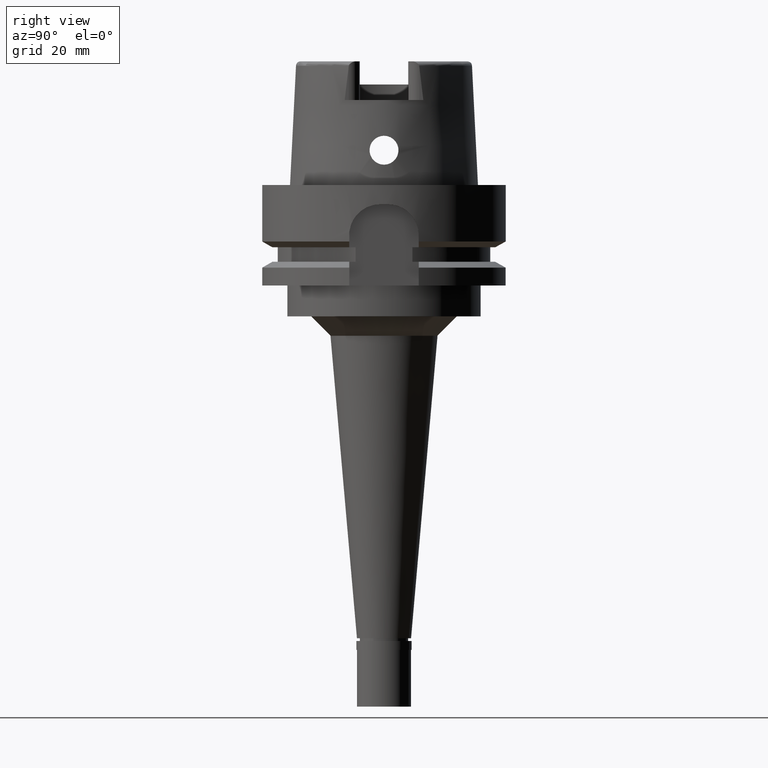
[diagram: clean part render]
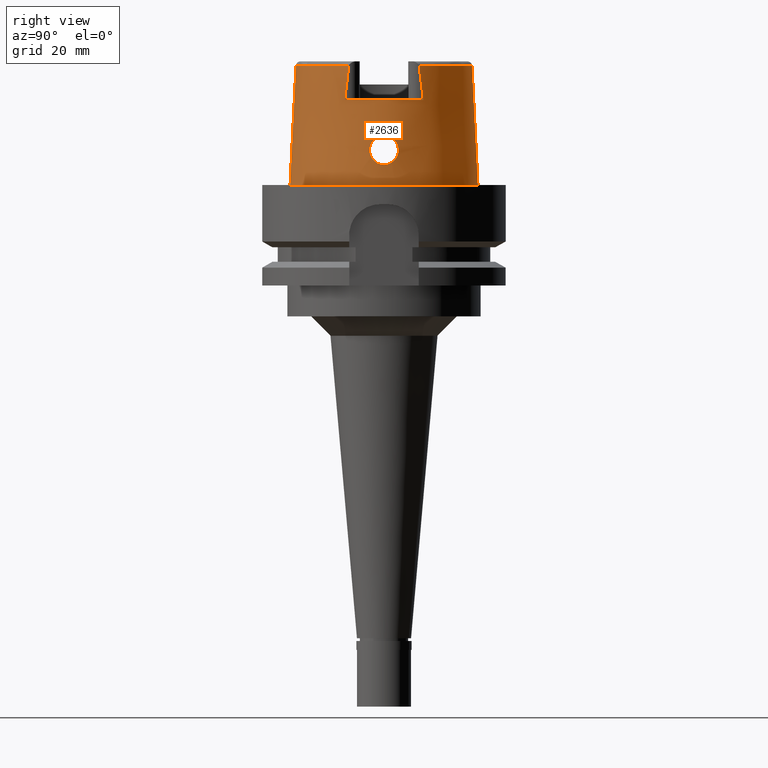
[diagram: same view with one face highlighted and labeled with its STEP entity id]
A machine part, right view. The second image highlights one B-rep face of the part: STEP entity #2636.
In plain terms, the highlighted conical surface has half-angle 2.862 deg.
Its self-contained STEP definition (entity closure, byte-faithful):
#4 = CARTESIAN_POINT ( 'NONE',  ( 23.68855723751004305, 3.450347699171872229, 7.530740006982551193 ) ) ;
#15 = CARTESIAN_POINT ( 'NONE',  ( 23.66772687887053550, -0.8260377808822363388, 12.65995669645669963 ) ) ;
#23 = CARTESIAN_POINT ( 'NONE',  ( 0.0000000000000000000, 22.77198729362000051, 30.85992712280000205 ) ) ;
#33 = CARTESIAN_POINT ( 'NONE',  ( 23.58900350600363183, 2.568408779417151511, 11.73510614039437172 ) ) ;
#62 = CARTESIAN_POINT ( 'NONE',  ( 23.61434009438023551, 2.137341337361701843, 12.08185171317717099 ) ) ;
#73 = CARTESIAN_POINT ( 'NONE',  ( 23.53993064155929105, -3.456305505734272643, 10.45481873918761195 ) ) ;
#88 = CARTESIAN_POINT ( 'NONE',  ( 23.58328856883540325, 2.660397646959397289, 11.64288536794346740 ) ) ;
#99 = CARTESIAN_POINT ( 'NONE',  ( 23.68088914115921284, -3.478839937161328777, 7.599913795360554225 ) ) ;
#131 = CARTESIAN_POINT ( 'NONE',  ( 23.84336247572032264, -2.695652087563208177, 6.393048436251502764 ) ) ;
#161 = CARTESIAN_POINT ( 'NONE',  ( 23.61798703484666007, -2.072642269840850648, 12.12517739533003258 ) ) ;
#164 = CARTESIAN_POINT ( 'NONE',  ( 0.0000000000000000000, 0.0000000000000000000, 30.85992712280000205 ) ) ;
#181 = CARTESIAN_POINT ( 'NONE',  ( 20.86997923046000025, 9.137001476156999757, 30.65040344234000003 ) ) ;
#188 = CARTESIAN_POINT ( 'NONE',  ( 23.88313469394290323, -2.454466314582109732, 6.151039821336518720 ) ) ;
#243 = EDGE_CURVE ( 'NONE', #4174, #3178, #4065, .T. ) ;
#246 = CARTESIAN_POINT ( 'NONE',  ( 23.99475801663713881, -1.442555970846193913, 5.538558543152837466 ) ) ;
#295 = CARTESIAN_POINT ( 'NONE',  ( 23.85298157406705499, 2.637214454195925040, 6.333980631488545399 ) ) ;
#324 = CARTESIAN_POINT ( 'NONE',  ( 23.98170405093249258, 1.606144847494943573, 5.605670975346608742 ) ) ;
#349 = CARTESIAN_POINT ( 'NONE',  ( 23.91319100211238080, 2.220985478939423885, 5.975451479650282671 ) ) ;
#362 = CARTESIAN_POINT ( 'NONE',  ( 20.86974110889999778, -9.111383545104999371, 30.85992740058000194 ) ) ;
#373 = CARTESIAN_POINT ( 'NONE',  ( 23.78102592462941445, 3.042781360712461414, 6.807334946793851316 ) ) ;
#384 = CARTESIAN_POINT ( 'NONE',  ( 23.61879622039568360, -2.057735969429762335, 12.13501234624806635 ) ) ;
#400 = ORIENTED_EDGE ( 'NONE', *, *, #2349, .T. ) ;
#402 = CARTESIAN_POINT ( 'NONE',  ( 23.65754888654957000, 3.566085653651247966, 7.809420252310836474 ) ) ;
#413 = VERTEX_POINT ( 'NONE', #3815 ) ;
#429 = CARTESIAN_POINT ( 'NONE',  ( 23.67751368057999883, 0.0000000000000000000, 12.75000000000000000 ) ) ;
#438 = CARTESIAN_POINT ( 'NONE',  ( 23.63992068397712032, -1.634347415397039871, 12.37735881775965652 ) ) ;
#453 = CARTESIAN_POINT ( 'NONE',  ( 23.58088518528171917, 2.699134634756411799, 11.60340814209685512 ) ) ;
#463 = CARTESIAN_POINT ( 'NONE',  ( 20.87001804948999961, 10.16747560217999968, 22.00000000000000000 ) ) ;
#473 = CARTESIAN_POINT ( 'NONE',  ( 24.05252611746999847, 0.0000000000000000000, 5.250000000000000000 ) ) ;
#483 = CARTESIAN_POINT ( 'NONE',  ( 23.69823497449173644, 3.412896848069677525, 7.445770702798573559 ) ) ;
#493 = CIRCLE ( 'NONE', #5019, 22.77198729362000051 ) ;
#494 = ORIENTED_EDGE ( 'NONE', *, *, #2341, .F. ) ;
#495 = CARTESIAN_POINT ( 'NONE',  ( 23.58844011897630466, -2.579645952114356877, 11.72205482460137382 ) ) ;
#509 = CARTESIAN_POINT ( 'NONE',  ( 23.59448689738724880, 2.477571482731500740, 11.81765306688613926 ) ) ;
#519 = CARTESIAN_POINT ( 'NONE',  ( 23.54701823615287637, -3.272998740002804219, 10.83389842775837586 ) ) ;
#541 = CARTESIAN_POINT ( 'NONE',  ( 23.55879106088249486, -3.744993943070600295, 9.209164391727391319 ) ) ;
#543 = CARTESIAN_POINT ( 'NONE',  ( 23.67751368057999883, 0.0000000000000000000, 12.75000000000000000 ) ) ;
#544 = VERTEX_POINT ( 'NONE', #1052 ) ;
#546 = EDGE_CURVE ( 'NONE', #5207, #3756, #2248, .T. ) ;
#568 = CARTESIAN_POINT ( 'NONE',  ( 23.59513476661113529, -3.730063598076286180, 8.542745580924540505 ) ) ;
#572 = CARTESIAN_POINT ( 'NONE',  ( 20.87001804948999961, 10.16747560217999968, 22.00000000000000000 ) ) ;
#586 = DIRECTION ( 'NONE',  ( 0.0000000000000000000, -1.000000000000000000, 0.0000000000000000000 ) ) ;
#597 = CARTESIAN_POINT ( 'NONE',  ( 23.83799695282603537, -2.727666253649847494, 6.426288021822288421 ) ) ;
#672 = CARTESIAN_POINT ( 'NONE',  ( 20.86974092012000170, 9.111384045666000020, 30.85992712280000205 ) ) ;
#702 = CARTESIAN_POINT ( 'NONE',  ( 23.88412909391565364, 2.432479418485351985, 6.145091003386774275 ) ) ;
#732 = CARTESIAN_POINT ( 'NONE',  ( 24.03376500060119980, 0.8302480605331002961, 5.341037130340071215 ) ) ;
#748 = AXIS2_PLACEMENT_3D ( 'NONE', #4690, #974, #2627 ) ;
#777 = DIRECTION ( 'NONE',  ( 0.0000000000000000000, 0.0000000000000000000, 1.000000000000000000 ) ) ;
#788 = CARTESIAN_POINT ( 'NONE',  ( 23.96242306813915235, 1.805086656811340617, 5.703892601686042951 ) ) ;
#795 = CARTESIAN_POINT ( 'NONE',  ( 23.65026068734314180, -1.384314138295526631, 12.48520441693819372 ) ) ;
#814 = CARTESIAN_POINT ( 'NONE',  ( 23.54630096614531354, 3.287577046925347357, 10.82043521641359796 ) ) ;
#854 = CARTESIAN_POINT ( 'NONE',  ( 23.67751368057999883, 0.0000000000000000000, 12.75000000000000000 ) ) ;
#869 = CARTESIAN_POINT ( 'NONE',  ( 23.53944839190516447, 3.475559442195103266, 10.40820764358275952 ) ) ;
#898 = CARTESIAN_POINT ( 'NONE',  ( 23.60482837085066876, 3.707229936253751745, 8.421914948171217219 ) ) ;
#926 = CARTESIAN_POINT ( 'NONE',  ( 23.57177321179175067, 2.847084432126883335, 11.44160620811570617 ) ) ;
#935 = CARTESIAN_POINT ( 'NONE',  ( 23.53850053331191461, -3.633706509211452218, 9.958319738545080568 ) ) ;
#962 = CARTESIAN_POINT ( 'NONE',  ( 23.59335121987951567, -2.500896529123173284, 11.79546787947302278 ) ) ;
#964 = CARTESIAN_POINT ( 'NONE',  ( 20.87000693992522926, 9.487123607258801883, 27.83827043657305111 ) ) ;
#974 = DIRECTION ( 'NONE',  ( 0.0000000000000000000, 0.0000000000000000000, -1.000000000000000000 ) ) ;
#984 = ORIENTED_EDGE ( 'NONE', *, *, #1774, .F. ) ;
#985 = CARTESIAN_POINT ( 'NONE',  ( 23.63472539880449830, -3.632547172957614201, 8.060104416561403085 ) ) ;
#1011 = CARTESIAN_POINT ( 'NONE',  ( 23.75809834855019176, -3.153628435814857411, 6.970797772904921530 ) ) ;
#1017 = VERTEX_POINT ( 'NONE', #4490 ) ;
#1039 = CARTESIAN_POINT ( 'NONE',  ( 23.76110487861491194, -3.139278339462332923, 6.948778678403657594 ) ) ;
#1049 = EDGE_CURVE ( 'NONE', #4278, #3178, #4320, .T. ) ;
#1052 = CARTESIAN_POINT ( 'NONE',  ( 0.0000000000000000000, 22.77198729362000051, 30.85992712280000205 ) ) ;
#1056 = EDGE_CURVE ( 'NONE', #3756, #413, #1944, .T. ) ;
#1124 = CARTESIAN_POINT ( 'NONE',  ( 23.99856500471819842, 1.394863178636560397, 5.519063425021861313 ) ) ;
#1175 = CARTESIAN_POINT ( 'NONE',  ( 23.99223646367448737, -1.473410311190632704, 5.551539834736958667 ) ) ;
#1177 = CARTESIAN_POINT ( 'NONE',  ( 23.85626858625260738, 2.616581020068711627, 6.313722416924282044 ) ) ;
#1196 = CARTESIAN_POINT ( 'NONE',  ( 0.0000000000000000000, 0.0000000000000000000, 1.136868377215999875E-13 ) ) ;
#1206 = CARTESIAN_POINT ( 'NONE',  ( 24.05252611746999847, 0.0000000000000000000, 5.250000000000000000 ) ) ;
#1213 = CARTESIAN_POINT ( 'NONE',  ( 23.67751368058000239, -0.2270535189732238446, 12.74999999999999822 ) ) ;
#1257 = CARTESIAN_POINT ( 'NONE',  ( 23.70816652426950810, 3.373461732846344319, 7.360140920849100432 ) ) ;
#1284 = CARTESIAN_POINT ( 'NONE',  ( 23.54795118974077894, 3.726731879322692897, 9.483734853834839384 ) ) ;
#1334 = CARTESIAN_POINT ( 'NONE',  ( 23.62277836679433562, 1.989116445076380302, 12.18120537934277081 ) ) ;
#1344 = CARTESIAN_POINT ( 'NONE',  ( 23.56555391610482886, -3.749631112985214454, 9.060417566199532757 ) ) ;
#1371 = CARTESIAN_POINT ( 'NONE',  ( 23.68361186076523239, -3.468785043175866001, 7.575193866721892988 ) ) ;
#1398 = CARTESIAN_POINT ( 'NONE',  ( 23.77928225036536958, -3.051539302170942047, 6.816939672405905704 ) ) ;
#1426 = CARTESIAN_POINT ( 'NONE',  ( 23.54351738446229803, -3.352607091215221491, 10.68101955395589009 ) ) ;
#1455 = CARTESIAN_POINT ( 'NONE',  ( 23.95890154034096753, -1.832948473077972595, 5.726471521390871899 ) ) ;
#1555 = VECTOR ( 'NONE', #3159, 1000.000000000000000 ) ;
#1561 = CARTESIAN_POINT ( 'NONE',  ( 23.99741075631709109, 1.409554114684895554, 5.524986341910077314 ) ) ;
#1659 = CARTESIAN_POINT ( 'NONE',  ( 23.53967735269935702, 3.465963688646387819, 10.43165444612070125 ) ) ;
#1673 = DIRECTION ( 'NONE',  ( 0.0000000000000000000, 0.0000000000000000000, -1.000000000000000000 ) ) ;
#1681 = CARTESIAN_POINT ( 'NONE',  ( 23.59610529743489238, 3.723760742367832499, 8.541685377204689900 ) ) ;
#1691 = CARTESIAN_POINT ( 'NONE',  ( 23.62941820713114183, -1.853895915664150573, 12.26037326338946087 ) ) ;
#1709 = CARTESIAN_POINT ( 'NONE',  ( 23.60568909088194900, 2.287295081277430864, 11.97229516123555015 ) ) ;
#1735 = CARTESIAN_POINT ( 'NONE',  ( 23.64333759168949101, 1.554890962339662286, 12.41259490475834326 ) ) ;
#1746 = CARTESIAN_POINT ( 'NONE',  ( 23.53728687678286491, -3.562649915528957489, 10.19725359336235115 ) ) ;
#1760 = CARTESIAN_POINT ( 'NONE',  ( 23.63403264063801501, 3.638170268120168416, 8.058107431931878395 ) ) ;
#1772 = CARTESIAN_POINT ( 'NONE',  ( 23.54900842641113812, -3.721294807237242264, 9.478475606044471036 ) ) ;
#1774 = EDGE_CURVE ( 'NONE', #2790, #4126, #2781, .T. ) ;
#1801 = CARTESIAN_POINT ( 'NONE',  ( 23.79346144852148726, -2.978214343259973251, 6.717921159957342958 ) ) ;
#1815 = CARTESIAN_POINT ( 'NONE',  ( 0.0000000000000000000, -24.31503482328999866, 1.527666881883999820E-13 ) ) ;
#1826 = CARTESIAN_POINT ( 'NONE',  ( 23.61157150263005988, -2.189803572519490871, 12.04670267975739328 ) ) ;
#1837 = CARTESIAN_POINT ( 'NONE',  ( 20.87000000000000099, -10.16755860605000095, 22.00000000000000000 ) ) ;
#1844 = CARTESIAN_POINT ( 'NONE',  ( 20.86979784206000232, 9.115619992242001146, 30.82498881485000197 ) ) ;
#1852 = CARTESIAN_POINT ( 'NONE',  ( 23.91154339638474369, -2.246419420628674946, 5.987216592170896412 ) ) ;
#1902 = CARTESIAN_POINT ( 'NONE',  ( 23.99515797017892282, -1.437616443467613081, 5.536501410461267092 ) ) ;
#1944 = CIRCLE ( 'NONE', #2986, 24.31503482328999866 ) ;
#2009 = CARTESIAN_POINT ( 'NONE',  ( 23.87245285018478569, 2.511601708048914805, 6.215112706912491625 ) ) ;
#2036 = CARTESIAN_POINT ( 'NONE',  ( 23.85419287427127344, 2.629640530377970631, 6.326505251751482817 ) ) ;
#2038 = CIRCLE ( 'NONE', #5085, 22.77198729362000407 ) ;
#2066 = CARTESIAN_POINT ( 'NONE',  ( 23.66770953623733220, 0.9495100501641201562, 12.66634016117606087 ) ) ;
#2097 = CARTESIAN_POINT ( 'NONE',  ( 23.62502143607543914, -1.940119025725478785, 12.20929184349184560 ) ) ;
#2113 = CARTESIAN_POINT ( 'NONE',  ( 23.56910439769827548, 2.890919178508798204, 11.38946302087856743 ) ) ;
#2114 = ORIENTED_EDGE ( 'NONE', *, *, #2908, .T. ) ;
#2123 = CARTESIAN_POINT ( 'NONE',  ( 23.63217478126792415, -1.797780070447220435, 12.29154566014680583 ) ) ;
#2144 = CARTESIAN_POINT ( 'NONE',  ( 23.56160207260822403, 3.015614892568195593, 11.23301493926605055 ) ) ;
#2156 = CARTESIAN_POINT ( 'NONE',  ( 23.55530572216867569, -3.738557501938339467, 9.298841582930137406 ) ) ;
#2161 = B_SPLINE_CURVE_WITH_KNOTS ( 'NONE', 3,
 ( #1206, #3696, #4892, #732, #4501, #3175, #4039, #4843, #3643, #1124, #1561, #2776, #324, #788, #4420, #349, #5317, #702, #2009, #3228, #4010, #1177, #2036, #295, #4475, #3668, #2446, #4087, #373, #5368, #3745, #3770, #4165, #1257, #483, #4224, #4, #402, #1760, #898, #1681, #4527, #2171, #3333, #2956, #2578, #5005, #1284, #4635, #2931, #4581, #4198, #3821, #3308, #869, #3798, #1659, #2521, #814, #2473, #2144, #2113, #926, #4606, #2880, #453, #4115, #2548, #88, #33, #509, #5030, #1709, #3386, #62, #1334, #3414, #2905, #2985, #1735, #5055, #5086, #2066, #3724, #429 ),
 .UNSPECIFIED., .F., .F.,
 ( 4, 2, 2, 1, 1, 1, 2, 2, 2, 2, 2, 1, 1, 2, 2, 2, 2, 2, 2, 1, 2, 2, 2, 2, 1, 2, 2, 2, 2, 1, 1, 1, 2, 2, 2, 2, 2, 1, 1, 2, 2, 2, 2, 2, 2, 1, 2, 2, 4 ),
 ( 0.0000000000000000000, 0.06250000000000829892, 0.09375000000001243450, 0.1093750000000144745, 0.1171875000000155292, 0.1210937500000160011, 0.1230468750000161954, 0.1250000000000164035, 0.1875000000000257572, 0.2187500000000304479, 0.2343750000000327516, 0.2421875000000338618, 0.2460937500000343336, 0.2480468750000345279, 0.2500000000000346945, 0.2812500000000394129, 0.2968750000000417444, 0.3125000000000441314, 0.3437500000000487943, 0.3593750000000511813, 0.3671875000000522915, 0.3750000000000534572, 0.4375000000000622280, 0.4687500000000665579, 0.4843750000000690004, 0.4921875000000699996, 0.5000000000000710543, 0.5625000000000807132, 0.5937500000000857092, 0.6093750000000884848, 0.6171875000000895950, 0.6210937500000902611, 0.6230468750000902611, 0.6250000000000903722, 0.6875000000000806022, 0.7187500000000760503, 0.7343750000000736078, 0.7421875000000726086, 0.7460937500000719425, 0.7480468750000716094, 0.7500000000000711653, 0.7812500000000615064, 0.7968750000000568434, 0.8125000000000521805, 0.8437500000000429656, 0.8593750000000385247, 0.8671875000000363043, 0.8750000000000340838, 1.000000000000000000 ),
 .UNSPECIFIED. ) ;
#2171 = CARTESIAN_POINT ( 'NONE',  ( 23.57913405059684919, 3.745727796019632905, 8.805491370648011795 ) ) ;
#2182 = CARTESIAN_POINT ( 'NONE',  ( 23.53979374434936744, -3.461506194722104190, 10.44240083775661354 ) ) ;
#2211 = CARTESIAN_POINT ( 'NONE',  ( 23.81480388169582696, -2.861193514358901346, 6.575158190719850637 ) ) ;
#2239 = CARTESIAN_POINT ( 'NONE',  ( 23.67836789942822051, -3.488085905809779064, 7.622961328153698979 ) ) ;
#2248 = LINE ( 'NONE', #4352, #1555 ) ;
#2264 = CARTESIAN_POINT ( 'NONE',  ( 23.70700576697741724, -3.379391146049224304, 7.369868018619542660 ) ) ;
#2333 = CARTESIAN_POINT ( 'NONE',  ( 20.86999201472913512, -9.826413489730867923, 24.98830091298254530 ) ) ;
#2341 = EDGE_CURVE ( 'NONE', #544, #413, #5078, .T. ) ;
#2349 = EDGE_CURVE ( 'NONE', #4174, #5207, #2038, .T. ) ;
#2363 = CARTESIAN_POINT ( 'NONE',  ( 20.87000233117000292, 9.145648092569000909, 30.58042765268000096 ) ) ;
#2435 = CARTESIAN_POINT ( 'NONE',  ( 20.86999179061000120, -9.150018439614999721, 30.54599490405999873 ) ) ;
#2446 = CARTESIAN_POINT ( 'NONE',  ( 23.80252403175860820, 2.931017569777441434, 6.660035374131375363 ) ) ;
#2455 = CARTESIAN_POINT ( 'NONE',  ( 23.64438619284843668, -1.531986505088180017, 12.42431131357487573 ) ) ;
#2473 = CARTESIAN_POINT ( 'NONE',  ( 23.55727267880208586, 3.089659396910291900, 11.12871243131645826 ) ) ;
#2521 = CARTESIAN_POINT ( 'NONE',  ( 23.54167511605633578, 3.387229341796747839, 10.62137329360867177 ) ) ;
#2530 = CARTESIAN_POINT ( 'NONE',  ( 23.67506698015264277, -0.4637129777346157278, 12.72933720864886986 ) ) ;
#2548 = CARTESIAN_POINT ( 'NONE',  ( 23.58283413439938414, 2.667715909168134836, 11.63550237182172253 ) ) ;
#2558 = ORIENTED_EDGE ( 'NONE', *, *, #3605, .F. ) ;
#2563 = DIRECTION ( 'NONE',  ( 0.0000000000000000000, 0.0000000000000000000, -1.000000000000000000 ) ) ;
#2564 = ORIENTED_EDGE ( 'NONE', *, *, #4497, .T. ) ;
#2578 = CARTESIAN_POINT ( 'NONE',  ( 23.56979177395144021, 3.750036859133824674, 8.975420249482427337 ) ) ;
#2589 = CARTESIAN_POINT ( 'NONE',  ( 23.56707879036779474, -3.749991354362414597, 9.029116886059362912 ) ) ;
#2614 = CARTESIAN_POINT ( 'NONE',  ( 23.57093143049711514, -2.851313121431978459, 11.45125563408479863 ) ) ;
#2627 = DIRECTION ( 'NONE',  ( 0.8989877876694422065, 0.4379736951247206744, 0.0000000000000000000 ) ) ;
#2636 = ADVANCED_FACE ( 'NONE', ( #2659, #5137 ), #4554, .T. ) ;
#2641 = CARTESIAN_POINT ( 'NONE',  ( 23.55001278978540213, -3.213460001737032279, 10.93680265336086954 ) ) ;
#2659 = FACE_OUTER_BOUND ( 'NONE', #3134, .T. ) ;
#2670 = CARTESIAN_POINT ( 'NONE',  ( 23.76426901111541312, -3.124088074244680158, 6.925721122271377261 ) ) ;
#2683 = B_SPLINE_CURVE_WITH_KNOTS ( 'NONE', 3,
 ( #5232, #2363, #181, #4806, #1844, #672 ),
 .UNSPECIFIED., .F., .F.,
 ( 4, 1, 1, 4 ),
 ( 0.0000000000000000000, 0.3333333333333000081, 0.6666666666667000474, 1.000000000000000000 ),
 .UNSPECIFIED. ) ;
#2699 = CARTESIAN_POINT ( 'NONE',  ( 23.97390189322070952, -1.680137079074636608, 5.646951149054861396 ) ) ;
#2712 = CARTESIAN_POINT ( 'NONE',  ( 0.0000000000000000000, 0.0000000000000000000, 15.42996356139999925 ) ) ;
#2741 = AXIS2_PLACEMENT_3D ( 'NONE', #2712, #3950, #586 ) ;
#2776 = CARTESIAN_POINT ( 'NONE',  ( 23.99669710173644432, 1.418545865696019703, 5.528650782279515674 ) ) ;
#2781 = B_SPLINE_CURVE_WITH_KNOTS ( 'NONE', 3,
 ( #854, #1213, #2530, #15, #2864, #2916, #4567, #4509, #795, #4127, #3731, #4176, #2455, #438, #2123, #1691, #2097, #3752, #3370, #384, #161, #3052, #1826, #3023, #2996, #962, #495, #3809, #3105, #4728, #2614, #4674, #2641, #519, #1426, #4647, #4289, #4755, #73, #2182, #3511, #1746, #935, #4700, #1772, #2156, #541, #5066, #1344, #2589, #5096, #568, #5150, #985, #3395, #4233, #3831, #2239, #99, #3883, #1371, #3482, #2264, #3426, #3854, #3079, #4258, #1011, #1039, #3910, #2670, #1398, #1801, #2211, #4316, #597, #131, #3454, #5124, #188, #1852, #5183, #1455, #2699, #4086, #3282, #1175, #3227, #246, #1902, #4948, #3723, #5316 ),
 .UNSPECIFIED., .F., .F.,
 ( 4, 2, 2, 1, 1, 1, 2, 2, 2, 2, 1, 1, 2, 2, 2, 1, 1, 2, 2, 2, 2, 1, 1, 1, 2, 2, 2, 2, 1, 2, 2, 2, 2, 1, 1, 1, 2, 2, 2, 2, 1, 1, 2, 2, 2, 1, 1, 2, 2, 2, 2, 1, 1, 1, 2, 2, 4 ),
 ( 0.0000000000000000000, 0.06250000000000886791, 0.09375000000001332268, 0.1093750000000156264, 0.1171875000000167782, 0.1210937500000173611, 0.1230468750000176664, 0.1250000000000179579, 0.1562500000000233147, 0.1718750000000260625, 0.1796875000000275613, 0.1835937500000281997, 0.1855468750000286438, 0.1875000000000290878, 0.2187500000000347777, 0.2343750000000376088, 0.2421875000000390521, 0.2460937500000398015, 0.2500000000000405231, 0.3125000000000494604, 0.3437500000000540679, 0.3593750000000563438, 0.3671875000000575096, 0.3710937500000583422, 0.3730468750000585088, 0.3750000000000586753, 0.4375000000000534572, 0.4687500000000506262, 0.4843750000000492384, 0.4921875000000485723, 0.5000000000000478506, 0.5625000000000389688, 0.5937500000000343059, 0.6093750000000317524, 0.6171875000000305311, 0.6210937500000299760, 0.6230468750000296430, 0.6250000000000294209, 0.6562500000000281997, 0.6718750000000276446, 0.6796875000000274225, 0.6835937500000272005, 0.6855468750000272005, 0.6875000000000273115, 0.7187500000000243139, 0.7343750000000228706, 0.7421875000000222045, 0.7460937500000219824, 0.7500000000000216493, 0.8125000000000177636, 0.8437500000000158762, 0.8593750000000148770, 0.8671875000000143219, 0.8710937500000139888, 0.8730468750000138778, 0.8750000000000136557, 1.000000000000000000 ),
 .UNSPECIFIED. ) ;
#2790 = VERTEX_POINT ( 'NONE', #543 ) ;
#2845 = CARTESIAN_POINT ( 'NONE',  ( 20.86997558656052476, -9.487356811412270829, 27.83696496950079791 ) ) ;
#2860 = CARTESIAN_POINT ( 'NONE',  ( 20.86999179061000120, -9.150018439614999721, 30.54599490405999873 ) ) ;
#2864 = CARTESIAN_POINT ( 'NONE',  ( 23.66466850333632266, -0.9480044495717834252, 12.63043970126431503 ) ) ;
#2880 = CARTESIAN_POINT ( 'NONE',  ( 23.57821914604371116, 2.742208235654030268, 11.55831978757849043 ) ) ;
#2891 = CARTESIAN_POINT ( 'NONE',  ( 20.87000233117000292, 9.149994763924999219, 30.54552228658999979 ) ) ;
#2896 = DIRECTION ( 'NONE',  ( 0.9164655183265837390, -0.4001136759951928745, 0.0000000000000000000 ) ) ;
#2905 = CARTESIAN_POINT ( 'NONE',  ( 23.63590725616582944, 1.723176269229885982, 12.33120691608773711 ) ) ;
#2908 = EDGE_CURVE ( 'NONE', #4370, #2973, #4487, .T. ) ;
#2916 = CARTESIAN_POINT ( 'NONE',  ( 23.65916342737475020, -1.131571903739314822, 12.57576862253401195 ) ) ;
#2931 = CARTESIAN_POINT ( 'NONE',  ( 23.53933427733073813, 3.626028711773065627, 9.964309588581262034 ) ) ;
#2956 = CARTESIAN_POINT ( 'NONE',  ( 23.57120202816835075, 3.749755524164912757, 8.948550628719379674 ) ) ;
#2973 = VERTEX_POINT ( 'NONE', #572 ) ;
#2985 = CARTESIAN_POINT ( 'NONE',  ( 23.63968815894226339, 1.640287868550937000, 12.37324677662062378 ) ) ;
#2986 = AXIS2_PLACEMENT_3D ( 'NONE', #1196, #777, #4939 ) ;
#2996 = CARTESIAN_POINT ( 'NONE',  ( 23.59755822103834433, -2.431105065893253148, 11.85587331386614629 ) ) ;
#3023 = CARTESIAN_POINT ( 'NONE',  ( 23.60596887148785683, -2.288635098679595359, 11.97317781004608683 ) ) ;
#3052 = CARTESIAN_POINT ( 'NONE',  ( 23.61751954973884793, -2.081210709320591601, 12.11947449291457879 ) ) ;
#3078 = ORIENTED_EDGE ( 'NONE', *, *, #4734, .F. ) ;
#3079 = CARTESIAN_POINT ( 'NONE',  ( 23.74548316733298492, -3.212421438286635400, 7.065072375272737126 ) ) ;
#3095 = CIRCLE ( 'NONE', #748, 23.21499834174999322 ) ;
#3105 = CARTESIAN_POINT ( 'NONE',  ( 23.58493100263977738, -2.634782808094112472, 11.66845574599115665 ) ) ;
#3134 = EDGE_LOOP ( 'NONE', ( #3450, #4846, #400, #4394, #4365, #494, #2564, #3078, #2114, #4943 ) ) ;
#3159 = DIRECTION ( 'NONE',  ( 0.0000000000000000000, -0.04993926899645239476, -0.9987522562738468945 ) ) ;
#3175 = CARTESIAN_POINT ( 'NONE',  ( 24.01734902334100141, 1.128655107724536588, 5.423339411600531790 ) ) ;
#3178 = VERTEX_POINT ( 'NONE', #2860 ) ;
#3227 = CARTESIAN_POINT ( 'NONE',  ( 23.99375432215048320, -1.454887814927025902, 5.543723660616666216 ) ) ;
#3228 = CARTESIAN_POINT ( 'NONE',  ( 23.86650358143977257, 2.551096593159658976, 6.251058685682989058 ) ) ;
#3282 = CARTESIAN_POINT ( 'NONE',  ( 23.98860857667519042, -1.516798560127921913, 5.570261383541560640 ) ) ;
#3303 = CARTESIAN_POINT ( 'NONE',  ( 20.86974110889999778, -9.111383545104999371, 30.85992740058000194 ) ) ;
#3308 = CARTESIAN_POINT ( 'NONE',  ( 23.53924976672257330, 3.484417343027568226, 10.38627937638963949 ) ) ;
#3333 = CARTESIAN_POINT ( 'NONE',  ( 23.57429896090125254, 3.748539094972896280, 8.891518746918087857 ) ) ;
#3370 = CARTESIAN_POINT ( 'NONE',  ( 23.62000181403640653, -2.035427150670896079, 12.14961673858315727 ) ) ;
#3386 = CARTESIAN_POINT ( 'NONE',  ( 23.61138173624553005, 2.188929714059325349, 12.04546285829401597 ) ) ;
#3395 = CARTESIAN_POINT ( 'NONE',  ( 23.65218691236326976, -3.578290181957578753, 7.876427553920784419 ) ) ;
#3414 = CARTESIAN_POINT ( 'NONE',  ( 23.62817015724072078, 1.885503909032015146, 12.24383706427067864 ) ) ;
#3426 = CARTESIAN_POINT ( 'NONE',  ( 23.72722429352147344, -3.293869829399387772, 7.206483831784262328 ) ) ;
#3450 = ORIENTED_EDGE ( 'NONE', *, *, #1049, .T. ) ;
#3454 = CARTESIAN_POINT ( 'NONE',  ( 23.84694102506523805, -2.674173773027325840, 6.371020870267812164 ) ) ;
#3482 = CARTESIAN_POINT ( 'NONE',  ( 23.69493685097286928, -3.426652187403320227, 7.473122060357717089 ) ) ;
#3511 = CARTESIAN_POINT ( 'NONE',  ( 23.53973889267281905, -3.463639193088053680, 10.43727709401315096 ) ) ;
#3605 = EDGE_CURVE ( 'NONE', #4126, #2790, #2161, .T. ) ;
#3643 = CARTESIAN_POINT ( 'NONE',  ( 24.00028263626748881, 1.372812590254948839, 5.510254489410010947 ) ) ;
#3668 = CARTESIAN_POINT ( 'NONE',  ( 23.82389896717018019, 2.813301793030101638, 6.517455579455659453 ) ) ;
#3687 = CARTESIAN_POINT ( 'NONE',  ( 20.87000008239883186, -9.137139755806007457, 30.65063906956666528 ) ) ;
#3691 = VECTOR ( 'NONE', #3791, 1000.000000000000000 ) ;
#3696 = CARTESIAN_POINT ( 'NONE',  ( 24.05252611747000557, 0.2332075382968263055, 5.249999999999998224 ) ) ;
#3723 = CARTESIAN_POINT ( 'NONE',  ( 24.05252611746999847, -0.4682056502121018648, 5.249999999999997335 ) ) ;
#3724 = CARTESIAN_POINT ( 'NONE',  ( 23.67751368058000239, 0.4544686228944173068, 12.75000000000000355 ) ) ;
#3731 = CARTESIAN_POINT ( 'NONE',  ( 23.64876256120255960, -1.422554263921478324, 12.46971289144384087 ) ) ;
#3745 = CARTESIAN_POINT ( 'NONE',  ( 23.75247777989847009, 3.179989929554988048, 7.008847178468177397 ) ) ;
#3752 = CARTESIAN_POINT ( 'NONE',  ( 23.62275757308493951, -1.983741741576089845, 12.18267028908780958 ) ) ;
#3756 = VERTEX_POINT ( 'NONE', #1815 ) ;
#3764 = EDGE_CURVE ( 'NONE', #2973, #4278, #3095, .T. ) ;
#3770 = CARTESIAN_POINT ( 'NONE',  ( 23.73862393436396445, 3.243263609252044599, 7.113457348496237564 ) ) ;
#3791 = DIRECTION ( 'NONE',  ( 0.0000000000000000000, 0.04993926899645239476, -0.9987522562738468945 ) ) ;
#3798 = CARTESIAN_POINT ( 'NONE',  ( 23.53958785597954417, 3.469605288532826570, 10.42281458576353437 ) ) ;
#3809 = CARTESIAN_POINT ( 'NONE',  ( 23.58633473297109617, -2.612807497027509473, 11.68997648644339904 ) ) ;
#3815 = CARTESIAN_POINT ( 'NONE',  ( 0.0000000000000000000, 24.31503482328999866, 1.136868377215999875E-13 ) ) ;
#3821 = CARTESIAN_POINT ( 'NONE',  ( 23.53886030446604849, 3.504572606031407300, 10.33499204748427758 ) ) ;
#3831 = CARTESIAN_POINT ( 'NONE',  ( 23.67256672163352960, -3.509046729397607312, 7.676750710723821314 ) ) ;
#3854 = CARTESIAN_POINT ( 'NONE',  ( 23.73431632779234945, -3.262921701513663120, 7.150614261389407922 ) ) ;
#3883 = CARTESIAN_POINT ( 'NONE',  ( 23.68257775179681701, -3.472617324244096526, 7.584550386566126789 ) ) ;
#3910 = CARTESIAN_POINT ( 'NONE',  ( 23.76312024841085702, -3.129619082063157975, 6.934071200652118350 ) ) ;
#3950 = DIRECTION ( 'NONE',  ( 0.0000000000000000000, 0.0000000000000000000, -1.000000000000000000 ) ) ;
#4010 = CARTESIAN_POINT ( 'NONE',  ( 23.85936826086464535, 2.596972581220984733, 6.294669588844516106 ) ) ;
#4030 = CARTESIAN_POINT ( 'NONE',  ( 20.87000000000000099, -10.16755860605000095, 22.00000000000000000 ) ) ;
#4039 = CARTESIAN_POINT ( 'NONE',  ( 24.01163274554503246, 1.217820769344634124, 5.452278814700989962 ) ) ;
#4065 = B_SPLINE_CURVE_WITH_KNOTS ( 'NONE', 3,
 ( #362, #5134, #3687, #2435 ),
 .UNSPECIFIED., .F., .F.,
 ( 4, 4 ),
 ( 0.0000000000000000000, 1.000000000000000000 ),
 .UNSPECIFIED. ) ;
#4086 = CARTESIAN_POINT ( 'NONE',  ( 23.98100793378860018, -1.604218444453537451, 5.609674165807662760 ) ) ;
#4087 = CARTESIAN_POINT ( 'NONE',  ( 23.79537441894455441, 2.969084266178382059, 6.708529497247964990 ) ) ;
#4115 = CARTESIAN_POINT ( 'NONE',  ( 23.58205140401987165, 2.680329601304873410, 11.62267309291027395 ) ) ;
#4126 = VERTEX_POINT ( 'NONE', #473 ) ;
#4127 = CARTESIAN_POINT ( 'NONE',  ( 23.64936467888585980, -1.407260314794098521, 12.47594398534533333 ) ) ;
#4165 = CARTESIAN_POINT ( 'NONE',  ( 23.71825101883831621, 3.331221317181477737, 7.276837198719729116 ) ) ;
#4174 = VERTEX_POINT ( 'NONE', #3303 ) ;
#4176 = CARTESIAN_POINT ( 'NONE',  ( 23.64838871811430820, -1.431958738161035027, 12.46583824789609096 ) ) ;
#4198 = CARTESIAN_POINT ( 'NONE',  ( 23.53837736596439711, 3.542831845533285673, 10.23196060641334348 ) ) ;
#4224 = CARTESIAN_POINT ( 'NONE',  ( 23.69164792903791650, 3.438541610269590709, 7.503362034997178576 ) ) ;
#4233 = CARTESIAN_POINT ( 'NONE',  ( 23.66129124435497388, -3.548536804648299015, 7.784336269155884835 ) ) ;
#4258 = CARTESIAN_POINT ( 'NONE',  ( 23.75119878413687502, -3.186151728799528904, 7.021868062198802996 ) ) ;
#4261 = CARTESIAN_POINT ( 'NONE',  ( 20.87003658568521303, 9.826152025516758926, 24.98976325587998559 ) ) ;
#4278 = VERTEX_POINT ( 'NONE', #1837 ) ;
#4289 = CARTESIAN_POINT ( 'NONE',  ( 23.54069512849820001, -3.429600127091168904, 10.51711655098396925 ) ) ;
#4316 = CARTESIAN_POINT ( 'NONE',  ( 23.82549350726800341, -2.800925866781284856, 6.505217097477192567 ) ) ;
#4320 = B_SPLINE_CURVE_WITH_KNOTS ( 'NONE', 3,
 ( #4030, #2333, #2845, #5358 ),
 .UNSPECIFIED., .F., .F.,
 ( 4, 4 ),
 ( 0.0000000000000000000, 1.000000000000000000 ),
 .UNSPECIFIED. ) ;
#4352 = CARTESIAN_POINT ( 'NONE',  ( 0.0000000000000000000, -22.77198729362000051, 30.85992712280000205 ) ) ;
#4365 = ORIENTED_EDGE ( 'NONE', *, *, #1056, .T. ) ;
#4370 = VERTEX_POINT ( 'NONE', #2891 ) ;
#4394 = ORIENTED_EDGE ( 'NONE', *, *, #546, .T. ) ;
#4420 = CARTESIAN_POINT ( 'NONE',  ( 23.92638819365575031, 2.115561137760294308, 5.901300026244398644 ) ) ;
#4475 = CARTESIAN_POINT ( 'NONE',  ( 23.83805038673713383, 2.730134319377870877, 6.426274999756901529 ) ) ;
#4487 = B_SPLINE_CURVE_WITH_KNOTS ( 'NONE', 3,
 ( #5098, #964, #4261, #463 ),
 .UNSPECIFIED., .F., .F.,
 ( 4, 4 ),
 ( 0.0000000000000000000, 1.000000000000000000 ),
 .UNSPECIFIED. ) ;
#4490 = CARTESIAN_POINT ( 'NONE',  ( 20.86974092012000170, 9.111384045666000020, 30.85992712280000205 ) ) ;
#4497 = EDGE_CURVE ( 'NONE', #544, #1017, #493, .T. ) ;
#4501 = CARTESIAN_POINT ( 'NONE',  ( 24.02790215157969556, 0.9499264541663373640, 5.370180032166071982 ) ) ;
#4509 = CARTESIAN_POINT ( 'NONE',  ( 23.65230119726987823, -1.330741221681321917, 12.50621076838996260 ) ) ;
#4527 = CARTESIAN_POINT ( 'NONE',  ( 23.58453821208119905, 3.739855083300895000, 8.718094792748654953 ) ) ;
#4554 = CONICAL_SURFACE ( 'NONE', #2741, 23.54351105844999736, 0.04996004983832824653 ) ;
#4567 = CARTESIAN_POINT ( 'NONE',  ( 23.65618151122890112, -1.223506951238635176, 12.54583574449526751 ) ) ;
#4581 = CARTESIAN_POINT ( 'NONE',  ( 23.53847082326829820, 3.572114933644745971, 10.14296290453378369 ) ) ;
#4606 = CARTESIAN_POINT ( 'NONE',  ( 23.57602849152719671, 2.777761846359537046, 11.51947351339548398 ) ) ;
#4635 = CARTESIAN_POINT ( 'NONE',  ( 23.54081196597857684, 3.655763899313890342, 9.844332748249740916 ) ) ;
#4647 = CARTESIAN_POINT ( 'NONE',  ( 23.54201470330653834, -3.389988468253005482, 10.60494500485719804 ) ) ;
#4674 = CARTESIAN_POINT ( 'NONE',  ( 23.56097840819933964, -3.013415460905171539, 11.24542781297810556 ) ) ;
#4690 = CARTESIAN_POINT ( 'NONE',  ( 0.0000000000000000000, 0.0000000000000000000, 22.00000000000000000 ) ) ;
#4700 = CARTESIAN_POINT ( 'NONE',  ( 23.54570807146622968, -3.703929575895454462, 9.598607238429011090 ) ) ;
#4728 = CARTESIAN_POINT ( 'NONE',  ( 23.58431428983666578, -2.644386558632862982, 11.65895038560924313 ) ) ;
#4734 = EDGE_CURVE ( 'NONE', #4370, #1017, #2683, .T. ) ;
#4755 = CARTESIAN_POINT ( 'NONE',  ( 23.54014372939570165, -3.448436920590362664, 10.47346612587416459 ) ) ;
#4806 = CARTESIAN_POINT ( 'NONE',  ( 20.86989361720999980, 9.124125366860001307, 30.75510703137000235 ) ) ;
#4843 = CARTESIAN_POINT ( 'NONE',  ( 24.00419425584899713, 1.321265764059968761, 5.490227762154475499 ) ) ;
#4846 = ORIENTED_EDGE ( 'NONE', *, *, #243, .F. ) ;
#4876 = CARTESIAN_POINT ( 'NONE',  ( 0.0000000000000000000, -22.77198729362000051, 30.85992712280000205 ) ) ;
#4892 = CARTESIAN_POINT ( 'NONE',  ( 24.04783583825280147, 0.4716412272982978826, 5.271818265294935912 ) ) ;
#4939 = DIRECTION ( 'NONE',  ( 0.0000000000000000000, -1.000000000000000000, 0.0000000000000000000 ) ) ;
#4943 = ORIENTED_EDGE ( 'NONE', *, *, #3764, .T. ) ;
#4948 = CARTESIAN_POINT ( 'NONE',  ( 24.03360054310592631, -0.9587356667942974475, 5.338921369911621362 ) ) ;
#4967 = CARTESIAN_POINT ( 'NONE',  ( 0.0000000000000000000, 0.0000000000000000000, 30.85992712280000205 ) ) ;
#5005 = CARTESIAN_POINT ( 'NONE',  ( 23.55631888267380702, 3.749673972674309574, 9.242495514406980917 ) ) ;
#5019 = AXIS2_PLACEMENT_3D ( 'NONE', #164, #2563, #5127 ) ;
#5030 = CARTESIAN_POINT ( 'NONE',  ( 23.60286892494765354, 2.335580589329553813, 11.93450517550938272 ) ) ;
#5055 = CARTESIAN_POINT ( 'NONE',  ( 23.64574133129227107, 1.497412766374571991, 12.43820373099771892 ) ) ;
#5066 = CARTESIAN_POINT ( 'NONE',  ( 23.56278143584889406, -3.748201984547275600, 9.119856784572593966 ) ) ;
#5078 = LINE ( 'NONE', #23, #3691 ) ;
#5085 = AXIS2_PLACEMENT_3D ( 'NONE', #4967, #1673, #2896 ) ;
#5086 = CARTESIAN_POINT ( 'NONE',  ( 23.64687572950916561, 1.469720109406254416, 12.45014795669747976 ) ) ;
#5096 = CARTESIAN_POINT ( 'NONE',  ( 23.57982235306233321, -3.750067617518143770, 8.777285567984636216 ) ) ;
#5098 = CARTESIAN_POINT ( 'NONE',  ( 20.87000233117000292, 9.149994763924999219, 30.54552228658999979 ) ) ;
#5124 = CARTESIAN_POINT ( 'NONE',  ( 23.84848357438269417, -2.664869631546638029, 6.361576909324172746 ) ) ;
#5127 = DIRECTION ( 'NONE',  ( 0.0000000000000000000, 1.000000000000000000, 0.0000000000000000000 ) ) ;
#5134 = CARTESIAN_POINT ( 'NONE',  ( 20.86991377788510249, -9.124261071398295897, 30.75528323507333539 ) ) ;
#5137 = FACE_BOUND ( 'NONE', #5189, .T. ) ;
#5150 = CARTESIAN_POINT ( 'NONE',  ( 23.62408059033152341, -3.661714896732918501, 8.181872242612010737 ) ) ;
#5183 = CARTESIAN_POINT ( 'NONE',  ( 23.94785027609587047, -1.936135081654608348, 5.786112639722214013 ) ) ;
#5189 = EDGE_LOOP ( 'NONE', ( #2558, #984 ) ) ;
#5207 = VERTEX_POINT ( 'NONE', #4876 ) ;
#5232 = CARTESIAN_POINT ( 'NONE',  ( 20.87000233117000292, 9.149994763924999219, 30.54552228658999979 ) ) ;
#5316 = CARTESIAN_POINT ( 'NONE',  ( 24.05252611746999847, 0.0000000000000000000, 5.250000000000000000 ) ) ;
#5317 = CARTESIAN_POINT ( 'NONE',  ( 23.89161686472399282, 2.379556073030867136, 6.100904372445729251 ) ) ;
#5358 = CARTESIAN_POINT ( 'NONE',  ( 20.86999179061000120, -9.150018439614999721, 30.54599490405999873 ) ) ;
#5368 = CARTESIAN_POINT ( 'NONE',  ( 23.77366640097631389, 3.079176074783605443, 6.858783972091663017 ) ) ;